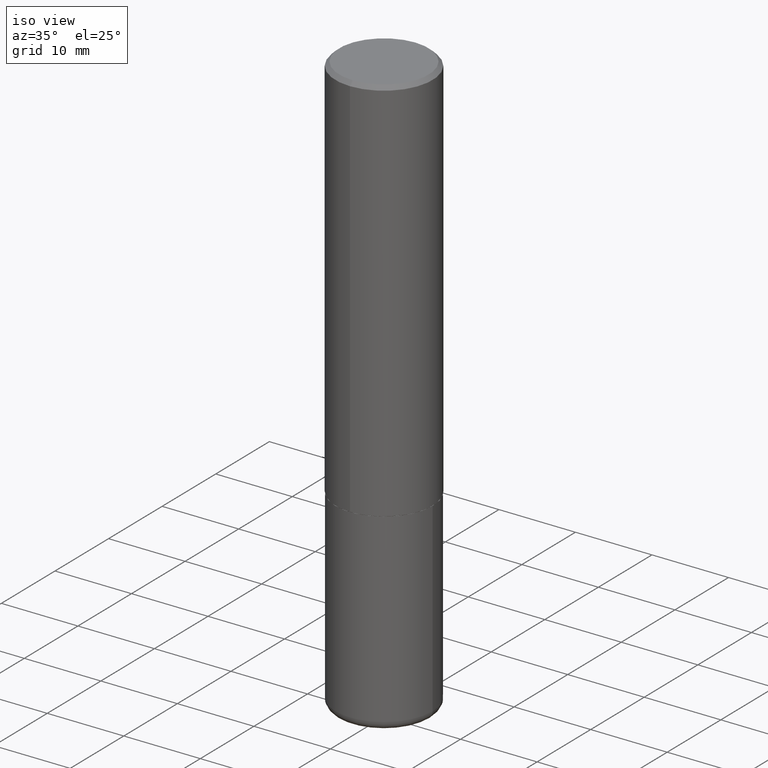
[diagram: clean part render]
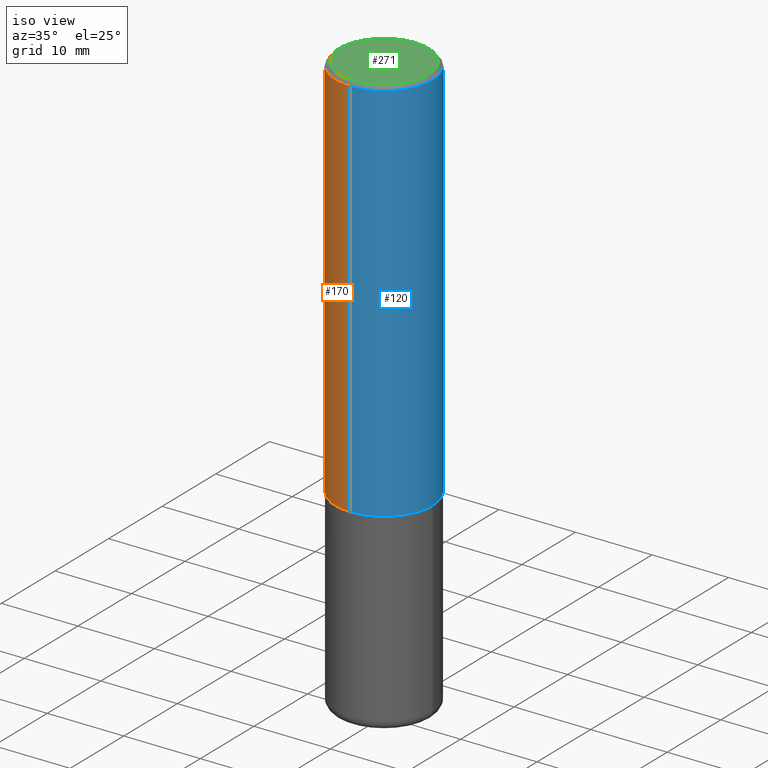
[diagram: same view with three faces highlighted in distinct colors, each labeled with its STEP entity id]
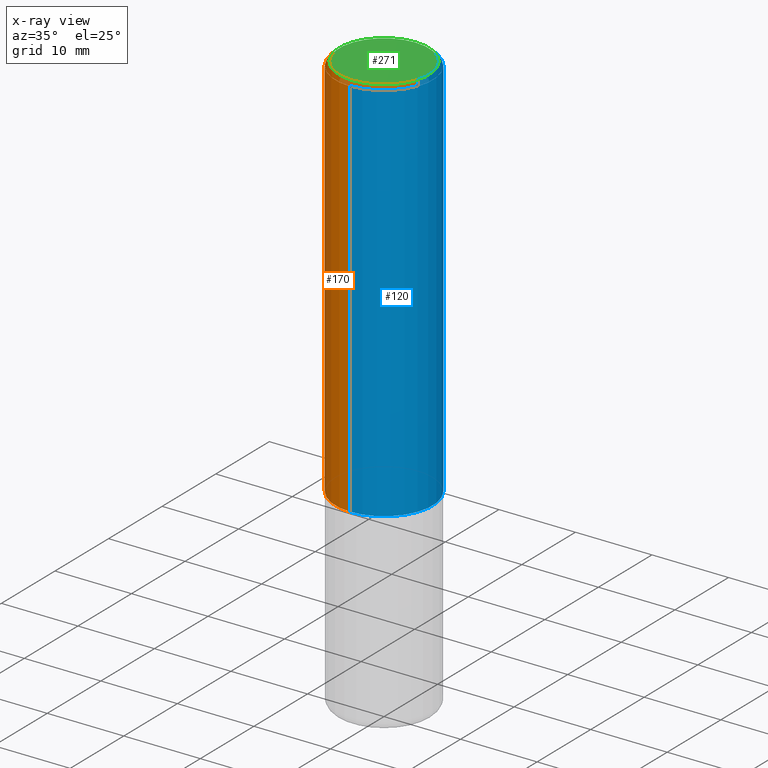
[diagram: x-ray of the same camera — body ghosted, the three highlighted faces saturated]
A machine part, iso view with three faces highlighted in distinct colors.
The next image is the same camera in x-ray (body ghosted, the three faces saturated) — at least one of them is partly hidden behind the body in this view.
Their STEP definitions:

[orange] entity #170 — the highlighted cylindrical surface (partial cylindrical patch) has radius 6.35 mm, axis along (-0, 0, 1).
#26 = VECTOR ( 'NONE', #105, 39.37007874015748143 ) ;
#35 = EDGE_LOOP ( 'NONE', ( #85, #232, #196, #107 ) ) ;
#40 = DIRECTION ( 'NONE',  ( -6.982962677686265922E-15, -1.000000000000000000, 3.278217592397112312E-15 ) ) ;
#41 = DIRECTION ( 'NONE',  ( -6.982962677686265922E-15, -1.000000000000000000, 3.483106191921935554E-15 ) ) ;
#65 = AXIS2_PLACEMENT_3D ( 'NONE', #325, #101, #41 ) ;
#78 = EDGE_CURVE ( 'NONE', #270, #321, #108, .T. ) ;
#85 = ORIENTED_EDGE ( 'NONE', *, *, #313, .F. ) ;
#93 = CARTESIAN_POINT ( 'NONE',  ( -1.745740669421519346E-15, -0.2500000000000072164, -1.998999999999999444 ) ) ;
#101 = DIRECTION ( 'NONE',  ( -2.446592051190030557E-29, 3.489872788065002235E-15, 1.000000000000000000 ) ) ;
#104 = EDGE_CURVE ( 'NONE', #334, #314, #346, .T. ) ;
#105 = DIRECTION ( 'NONE',  ( -2.446592051190030838E-29, 3.489872788065001841E-15, 1.000000000000000000 ) ) ;
#107 = ORIENTED_EDGE ( 'NONE', *, *, #104, .F. ) ;
#108 = CIRCLE ( 'NONE', #237, 0.2500000000000002776 ) ;
#116 = DIRECTION ( 'NONE',  ( -6.982962677686266711E-15, -1.000000000000000000, 3.489872788065002235E-15 ) ) ;
#117 = EDGE_CURVE ( 'NONE', #321, #314, #256, .T. ) ;
#121 = AXIS2_PLACEMENT_3D ( 'NONE', #208, #413, #116 ) ;
#160 = CARTESIAN_POINT ( 'NONE',  ( 1.745740669421566875E-15, 0.2499999999999999167, -0.02000000000000092676 ) ) ;
#170 = ADVANCED_FACE ( 'NONE', ( #205 ), #207, .T. ) ;
#184 = DIRECTION ( 'NONE',  ( -2.446592051190030838E-29, 3.489872788065001841E-15, 1.000000000000000000 ) ) ;
#196 = ORIENTED_EDGE ( 'NONE', *, *, #117, .T. ) ;
#205 = FACE_OUTER_BOUND ( 'NONE', #35, .T. ) ;
#207 = CYLINDRICAL_SURFACE ( 'NONE', #121, 0.2500000000000001110 ) ;
#208 = CARTESIAN_POINT ( 'NONE',  ( 0.000000000000000000, 0.000000000000000000, 0.000000000000000000 ) ) ;
#232 = ORIENTED_EDGE ( 'NONE', *, *, #78, .T. ) ;
#237 = AXIS2_PLACEMENT_3D ( 'NONE', #263, #403, #40 ) ;
#248 = LINE ( 'NONE', #389, #322 ) ;
#256 = LINE ( 'NONE', #398, #26 ) ;
#263 = CARTESIAN_POINT ( 'NONE',  ( 4.890737510328871163E-29, -6.976255703341939282E-15, -1.999000000000000110 ) ) ;
#268 = CARTESIAN_POINT ( 'NONE',  ( 1.776356839400276497E-15, 0.2499999999999933109, -1.999000000000000998 ) ) ;
#270 = VERTEX_POINT ( 'NONE', #268 ) ;
#312 = CARTESIAN_POINT ( 'NONE',  ( -1.715124499442882299E-15, -0.2500000000000000555, -0.01999999999999918510 ) ) ;
#313 = EDGE_CURVE ( 'NONE', #270, #334, #248, .T. ) ;
#314 = VERTEX_POINT ( 'NONE', #312 ) ;
#321 = VERTEX_POINT ( 'NONE', #93 ) ;
#322 = VECTOR ( 'NONE', #184, 39.37007874015748143 ) ;
#325 = CARTESIAN_POINT ( 'NONE',  ( 4.893184102380074708E-31, -6.979745576130022269E-17, -0.02000000000000005593 ) ) ;
#334 = VERTEX_POINT ( 'NONE', #160 ) ;
#346 = CIRCLE ( 'NONE', #65, 0.2500000000000000000 ) ;
#389 = CARTESIAN_POINT ( 'NONE',  ( 1.776356839400251254E-15, 0.2500000000000001110, -8.724681970162509532E-16 ) ) ;
#398 = CARTESIAN_POINT ( 'NONE',  ( -1.745740669421567467E-15, -0.2500000000000001110, 8.724681970162509532E-16 ) ) ;
#403 = DIRECTION ( 'NONE',  ( -2.446592051190030557E-29, 3.489872788065002235E-15, 1.000000000000000000 ) ) ;
#413 = DIRECTION ( 'NONE',  ( -2.446592051190030557E-29, 3.489872788065002235E-15, 1.000000000000000000 ) ) ;

[blue] entity #120 — the highlighted cylindrical surface (partial cylindrical patch) has radius 6.35 mm, axis along (-0, 0, 1).
#26 = VECTOR ( 'NONE', #105, 39.37007874015748143 ) ;
#27 = ORIENTED_EDGE ( 'NONE', *, *, #117, .F. ) ;
#30 = CIRCLE ( 'NONE', #255, 0.2500000000000002776 ) ;
#50 = DIRECTION ( 'NONE',  ( -6.982962677686266711E-15, -1.000000000000000000, 3.489872788065002235E-15 ) ) ;
#60 = AXIS2_PLACEMENT_3D ( 'NONE', #82, #343, #50 ) ;
#64 = CARTESIAN_POINT ( 'NONE',  ( 4.890737510328871163E-29, -6.976255703341939282E-15, -1.999000000000000110 ) ) ;
#71 = CYLINDRICAL_SURFACE ( 'NONE', #60, 0.2500000000000001110 ) ;
#74 = AXIS2_PLACEMENT_3D ( 'NONE', #273, #306, #86 ) ;
#82 = CARTESIAN_POINT ( 'NONE',  ( 0.000000000000000000, 0.000000000000000000, 0.000000000000000000 ) ) ;
#86 = DIRECTION ( 'NONE',  ( -6.982962677686265922E-15, -1.000000000000000000, 3.483106191921935554E-15 ) ) ;
#93 = CARTESIAN_POINT ( 'NONE',  ( -1.745740669421519346E-15, -0.2500000000000072164, -1.998999999999999444 ) ) ;
#105 = DIRECTION ( 'NONE',  ( -2.446592051190030838E-29, 3.489872788065001841E-15, 1.000000000000000000 ) ) ;
#117 = EDGE_CURVE ( 'NONE', #321, #314, #256, .T. ) ;
#120 = ADVANCED_FACE ( 'NONE', ( #368 ), #71, .T. ) ;
#154 = DIRECTION ( 'NONE',  ( -2.446592051190030557E-29, 3.489872788065002235E-15, 1.000000000000000000 ) ) ;
#160 = CARTESIAN_POINT ( 'NONE',  ( 1.745740669421566875E-15, 0.2499999999999999167, -0.02000000000000092676 ) ) ;
#184 = DIRECTION ( 'NONE',  ( -2.446592051190030838E-29, 3.489872788065001841E-15, 1.000000000000000000 ) ) ;
#248 = LINE ( 'NONE', #389, #322 ) ;
#251 = EDGE_LOOP ( 'NONE', ( #260, #333, #336, #27 ) ) ;
#255 = AXIS2_PLACEMENT_3D ( 'NONE', #64, #154, #351 ) ;
#256 = LINE ( 'NONE', #398, #26 ) ;
#260 = ORIENTED_EDGE ( 'NONE', *, *, #418, .T. ) ;
#262 = EDGE_CURVE ( 'NONE', #314, #334, #410, .T. ) ;
#268 = CARTESIAN_POINT ( 'NONE',  ( 1.776356839400276497E-15, 0.2499999999999933109, -1.999000000000000998 ) ) ;
#270 = VERTEX_POINT ( 'NONE', #268 ) ;
#273 = CARTESIAN_POINT ( 'NONE',  ( 4.893184102380074708E-31, -6.979745576130022269E-17, -0.02000000000000005593 ) ) ;
#306 = DIRECTION ( 'NONE',  ( -2.446592051190030557E-29, 3.489872788065002235E-15, 1.000000000000000000 ) ) ;
#312 = CARTESIAN_POINT ( 'NONE',  ( -1.715124499442882299E-15, -0.2500000000000000555, -0.01999999999999918510 ) ) ;
#313 = EDGE_CURVE ( 'NONE', #270, #334, #248, .T. ) ;
#314 = VERTEX_POINT ( 'NONE', #312 ) ;
#321 = VERTEX_POINT ( 'NONE', #93 ) ;
#322 = VECTOR ( 'NONE', #184, 39.37007874015748143 ) ;
#333 = ORIENTED_EDGE ( 'NONE', *, *, #313, .T. ) ;
#334 = VERTEX_POINT ( 'NONE', #160 ) ;
#336 = ORIENTED_EDGE ( 'NONE', *, *, #262, .F. ) ;
#343 = DIRECTION ( 'NONE',  ( -2.446592051190030557E-29, 3.489872788065002235E-15, 1.000000000000000000 ) ) ;
#351 = DIRECTION ( 'NONE',  ( -6.982962677686265922E-15, -1.000000000000000000, 3.278217592397112312E-15 ) ) ;
#368 = FACE_OUTER_BOUND ( 'NONE', #251, .T. ) ;
#389 = CARTESIAN_POINT ( 'NONE',  ( 1.776356839400251254E-15, 0.2500000000000001110, -8.724681970162509532E-16 ) ) ;
#398 = CARTESIAN_POINT ( 'NONE',  ( -1.745740669421567467E-15, -0.2500000000000001110, 8.724681970162509532E-16 ) ) ;
#410 = CIRCLE ( 'NONE', #74, 0.2500000000000000000 ) ;
#418 = EDGE_CURVE ( 'NONE', #321, #270, #30, .T. ) ;

[green] entity #271 — the highlighted planar face has unit normal (0, -0, -1).
#2 = AXIS2_PLACEMENT_3D ( 'NONE', #112, #409, #234 ) ;
#8 = VERTEX_POINT ( 'NONE', #14 ) ;
#14 = CARTESIAN_POINT ( 'NONE',  ( 1.675911042644703774E-15, 0.2299999999999998990, -7.518185580527182730E-16 ) ) ;
#22 = EDGE_LOOP ( 'NONE', ( #225, #209 ) ) ;
#29 = VERTEX_POINT ( 'NONE', #287 ) ;
#38 = EDGE_CURVE ( 'NONE', #8, #29, #385, .T. ) ;
#79 = PLANE ( 'NONE',  #2 ) ;
#99 = EDGE_CURVE ( 'NONE', #29, #8, #404, .T. ) ;
#112 = CARTESIAN_POINT ( 'NONE',  ( 1.606081415867840476E-15, 0.2299999999999998990, -7.772446496538342614E-16 ) ) ;
#135 = DIRECTION ( 'NONE',  ( -6.982962677686265922E-15, -1.000000000000000000, 3.489872788065002235E-15 ) ) ;
#149 = FACE_OUTER_BOUND ( 'NONE', #22, .T. ) ;
#165 = DIRECTION ( 'NONE',  ( -2.446592051190030557E-29, 3.489872788065002235E-15, 1.000000000000000000 ) ) ;
#209 = ORIENTED_EDGE ( 'NONE', *, *, #99, .T. ) ;
#210 = AXIS2_PLACEMENT_3D ( 'NONE', #360, #394, #135 ) ;
#225 = ORIENTED_EDGE ( 'NONE', *, *, #38, .T. ) ;
#234 = DIRECTION ( 'NONE',  ( 6.982962677686265922E-15, 1.000000000000000000, -3.489872788065001841E-15 ) ) ;
#271 = ADVANCED_FACE ( 'NONE', ( #149 ), #79, .F. ) ;
#286 = AXIS2_PLACEMENT_3D ( 'NONE', #371, #165, #329 ) ;
#287 = CARTESIAN_POINT ( 'NONE',  ( -1.646519519465166770E-15, -0.2299999999999998990, 8.535229244571821279E-16 ) ) ;
#329 = DIRECTION ( 'NONE',  ( -6.982962677686265922E-15, -1.000000000000000000, 3.489872788065002235E-15 ) ) ;
#360 = CARTESIAN_POINT ( 'NONE',  ( -1.244145472082398885E-45, 1.774676503711654950E-31, 5.085218320223195210E-17 ) ) ;
#371 = CARTESIAN_POINT ( 'NONE',  ( -1.244145472082398885E-45, 1.774676503711654950E-31, 5.085218320223195210E-17 ) ) ;
#385 = CIRCLE ( 'NONE', #286, 0.2299999999999998990 ) ;
#394 = DIRECTION ( 'NONE',  ( -2.446592051190030557E-29, 3.489872788065002235E-15, 1.000000000000000000 ) ) ;
#404 = CIRCLE ( 'NONE', #210, 0.2299999999999998990 ) ;
#409 = DIRECTION ( 'NONE',  ( 2.446592051190030277E-29, -3.489872788065001841E-15, -1.000000000000000000 ) ) ;